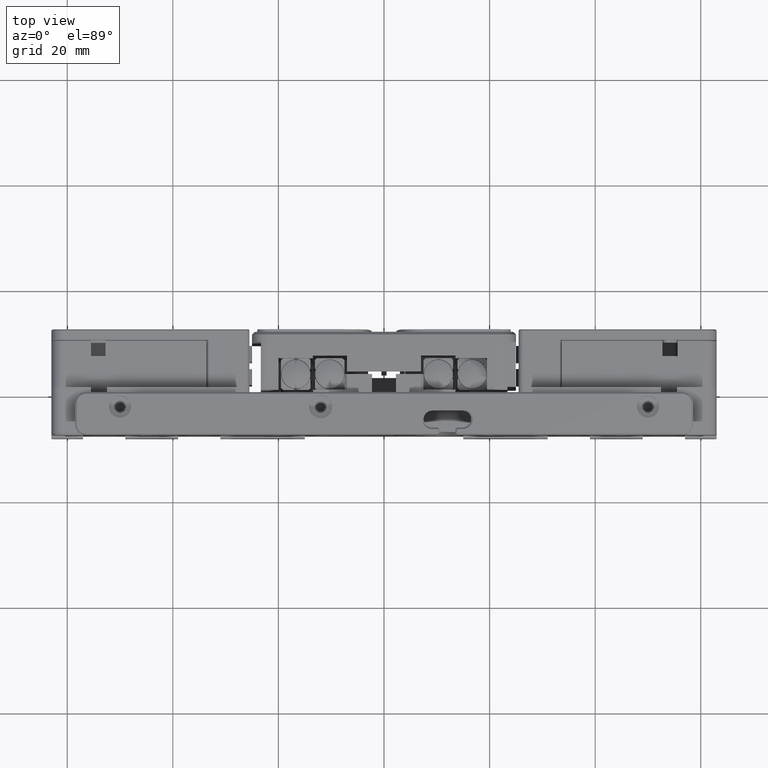
[diagram: clean part render]
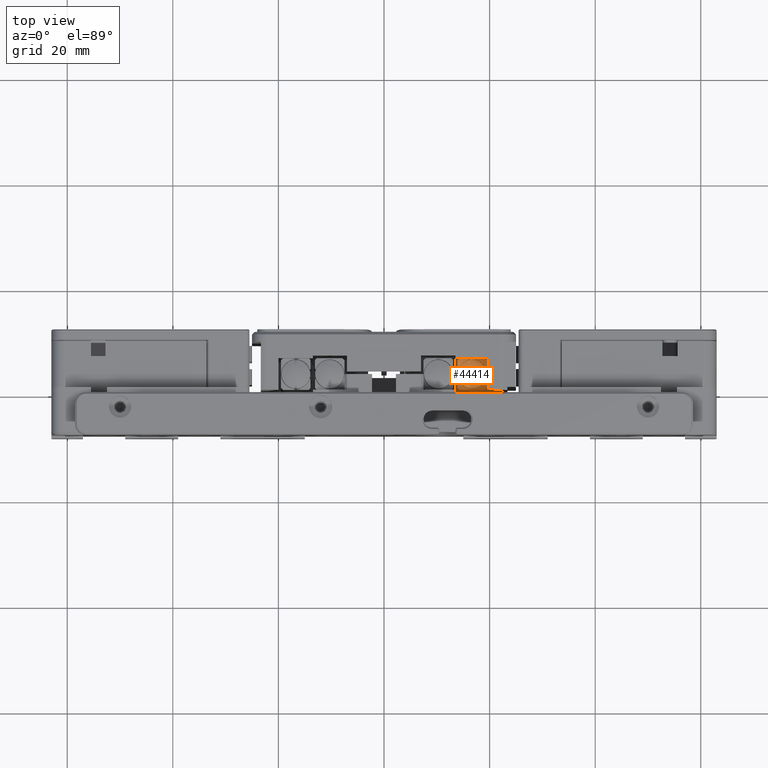
[diagram: same view with one face highlighted and labeled with its STEP entity id]
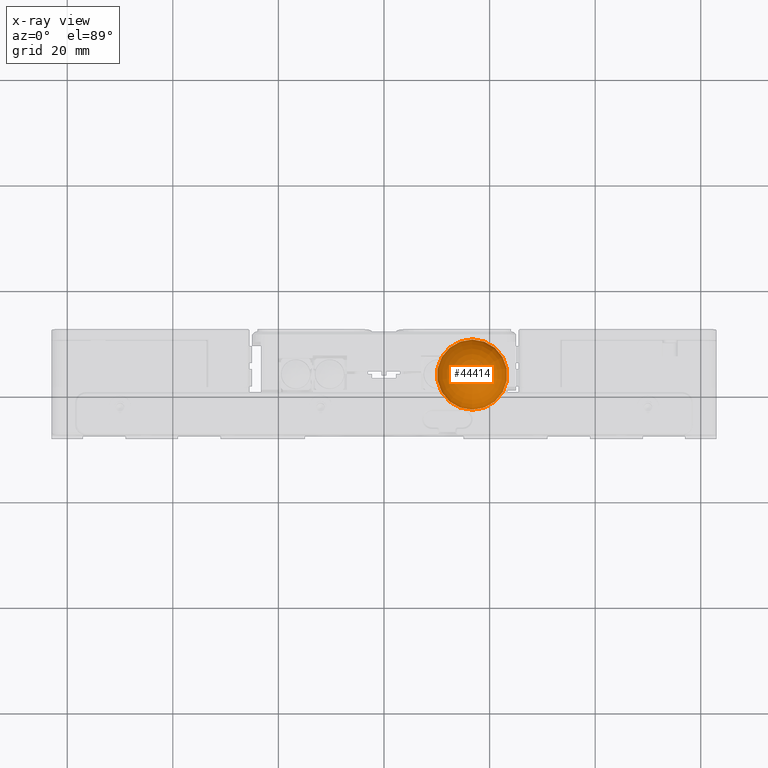
[diagram: x-ray of the same camera — body ghosted, the highlighted face saturated]
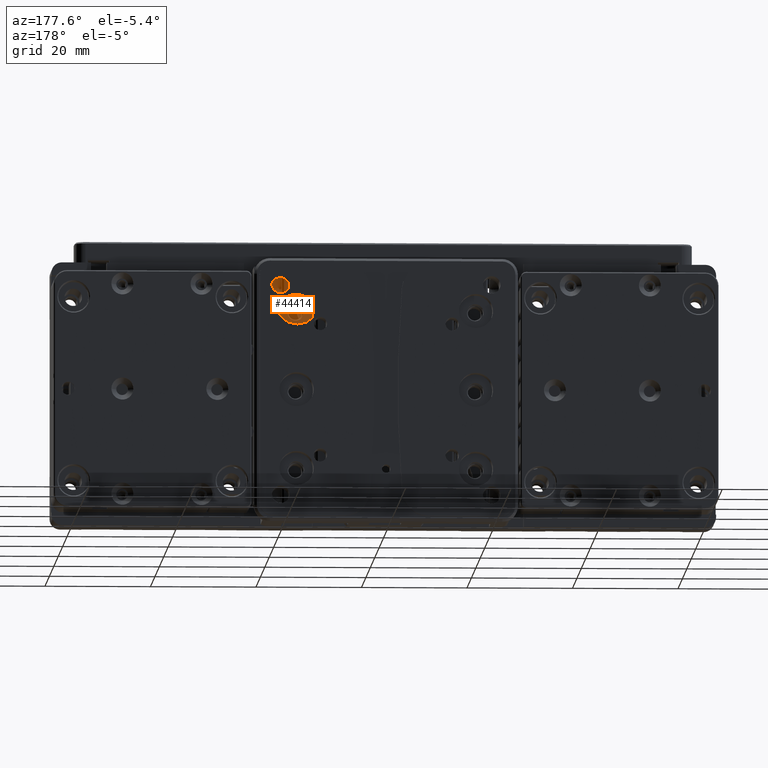
[diagram: same view with one face highlighted and labeled with its STEP entity id]
A machine part, top view. The second image highlights one B-rep face of the part: STEP entity #44414.
The next image is the same camera in x-ray: the body ghosted, the highlighted face saturated — about 0% of this face is hidden behind the body in this view.
A second angle (auxiliary view) of the same face is appended — the face is thin or edge-on in the first view.
In plain terms, the highlighted toroidal blend (fillet) surface has major radius 0.1461 mm and minor (blend) radius 6.8165 mm.
Its self-contained STEP definition (entity closure, byte-faithful):
#4850 = DIRECTION ( 'NONE',  ( 0.000000000000000000, 1.000000000000000000, 0.000000000000000000 ) ) ;
#6048 = CARTESIAN_POINT ( 'NONE',  ( 16.70000000000003482, 3.500000000000065281, 17.18506639587450735 ) ) ;
#6600 = ORIENTED_EDGE ( 'NONE', *, *, #38983, .F. ) ;
#15747 = VERTEX_POINT ( 'NONE', #50351 ) ;
#21008 = DIRECTION ( 'NONE',  ( -0.000000000000000000, -0.000000000000000000, -1.000000000000000000 ) ) ;
#27268 = DIRECTION ( 'NONE',  ( 0.000000000000000000, 0.000000000000000000, 1.000000000000000000 ) ) ;
#35843 = CIRCLE ( 'NONE', #43097, 2.712500000001004441 ) ;
#38983 = EDGE_CURVE ( 'NONE', #15747, #15747, #35843, .T. ) ;
#39685 = EDGE_LOOP ( 'NONE', ( #6600 ) ) ;
#41672 = TOROIDAL_SURFACE ( 'NONE', #54330, 0.1461239900320817908, 6.816499999930130116 ) ;
#42580 = CARTESIAN_POINT ( 'NONE',  ( 16.70000000000003482, 3.500000000000065281, 23.49999999999920774 ) ) ;
#43097 = AXIS2_PLACEMENT_3D ( 'NONE', #42580, #21008, #4850 ) ;
#44299 = FACE_OUTER_BOUND ( 'NONE', #39685, .T. ) ;
#44414 = ADVANCED_FACE ( 'NONE', ( #44299 ), #41672, .T. ) ;
#49096 = DIRECTION ( 'NONE',  ( 0.000000000000000000, 1.000000000000000000, 0.000000000000000000 ) ) ;
#50351 = CARTESIAN_POINT ( 'NONE',  ( 16.70000000000003482, 6.212500000001069722, 23.49999999999920774 ) ) ;
#54330 = AXIS2_PLACEMENT_3D ( 'NONE', #6048, #27268, #49096 ) ;